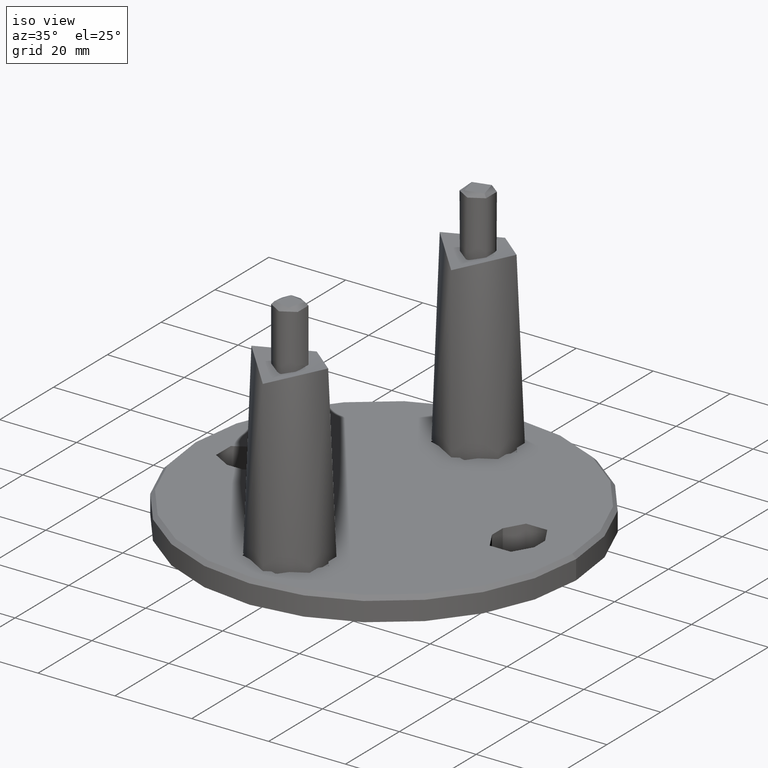
[diagram: clean part render]
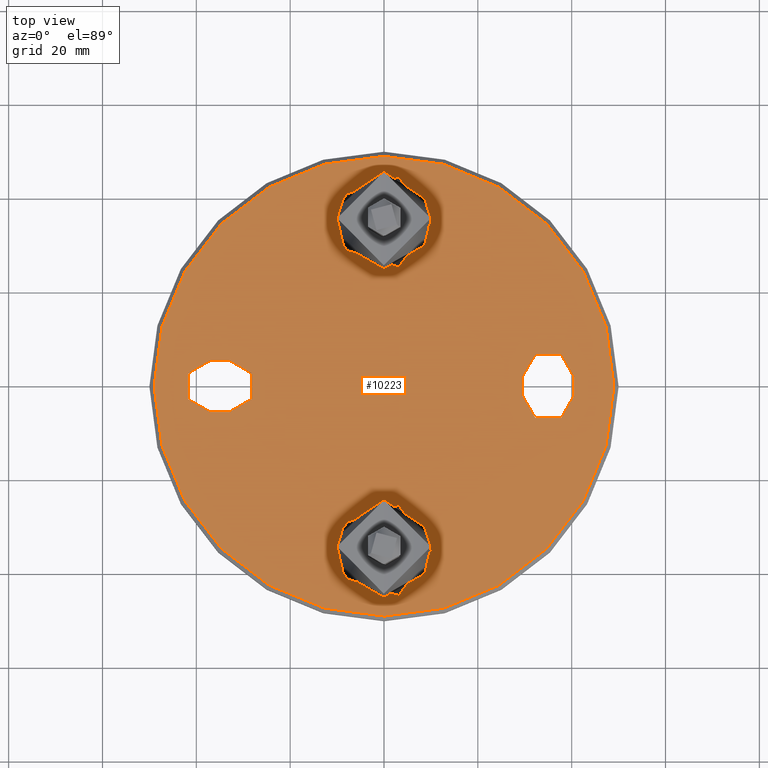
[diagram: tour spotlight — one face highlighted and labeled with its STEP entity id]
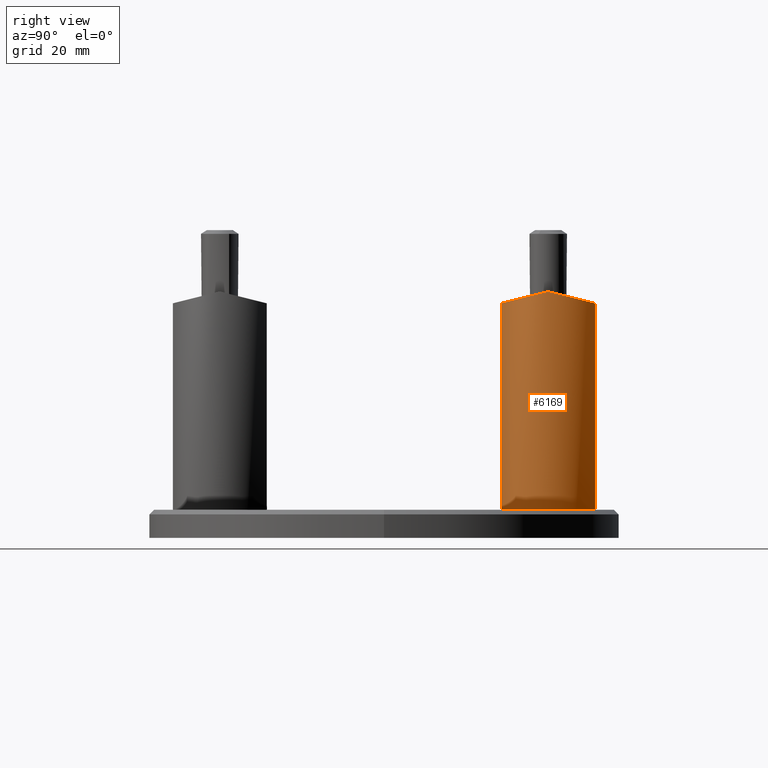
[diagram: tour spotlight — one face highlighted and labeled with its STEP entity id]
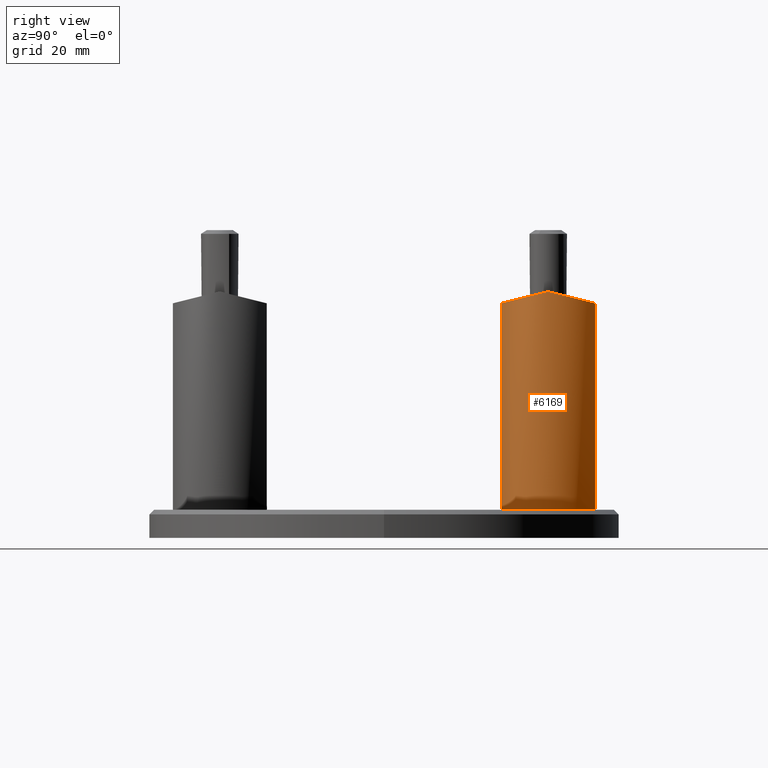
[diagram: tour spotlight — one face highlighted and labeled with its STEP entity id]
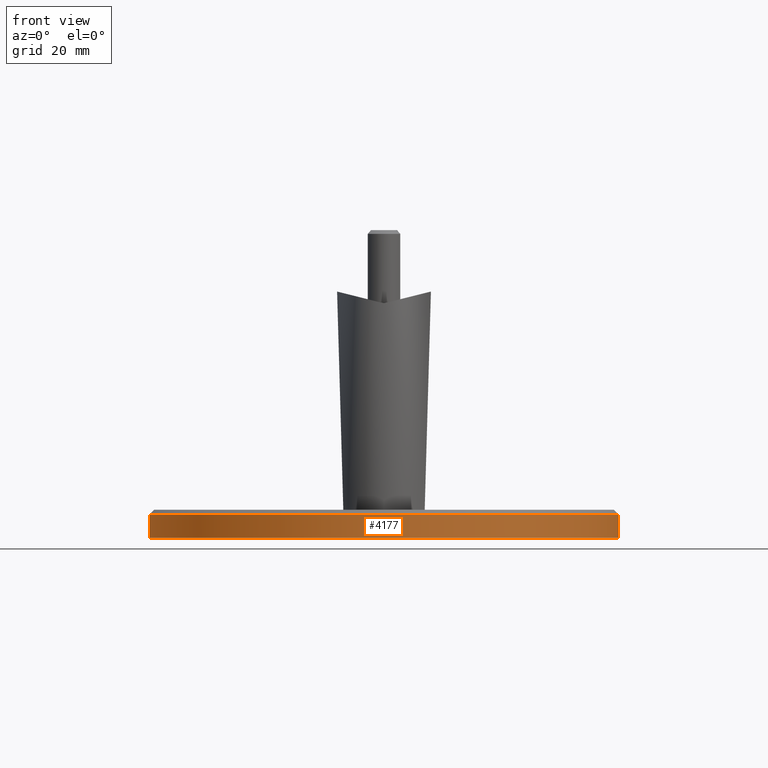
[diagram: tour spotlight — one face highlighted and labeled with its STEP entity id]
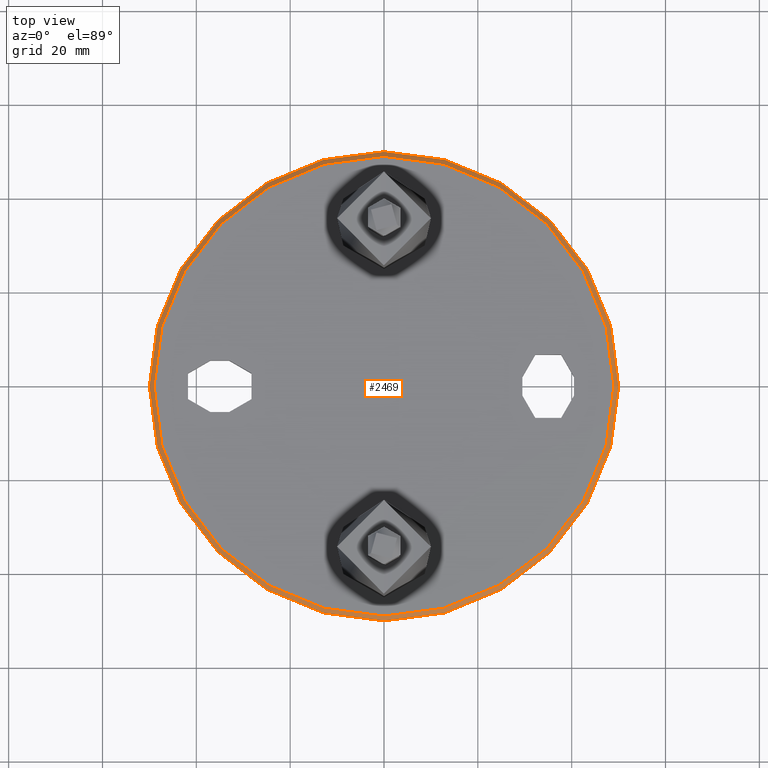
[diagram: tour spotlight — one face highlighted and labeled with its STEP entity id]
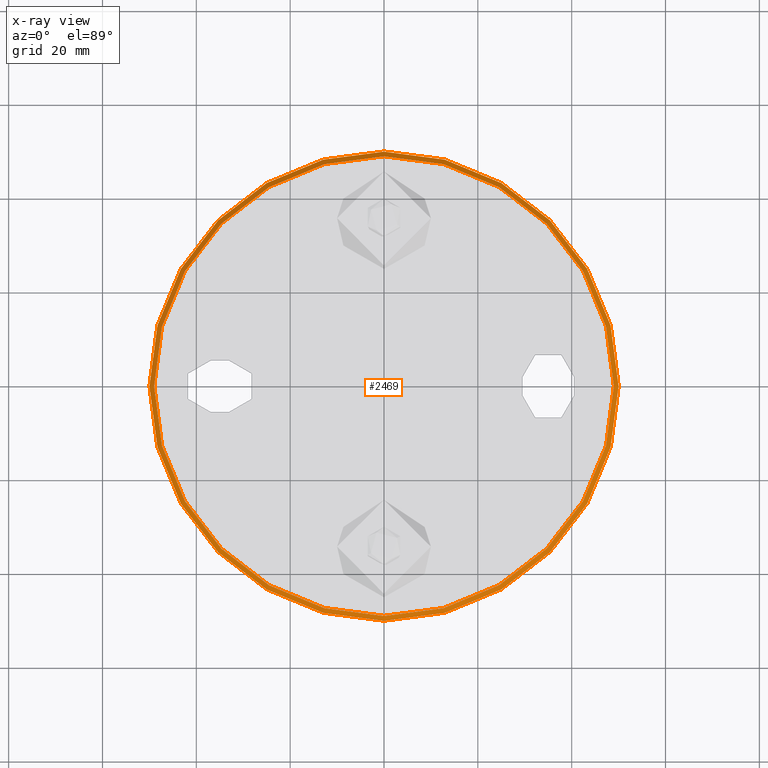
[diagram: x-ray of the same camera — body ghosted, this tour face saturated]
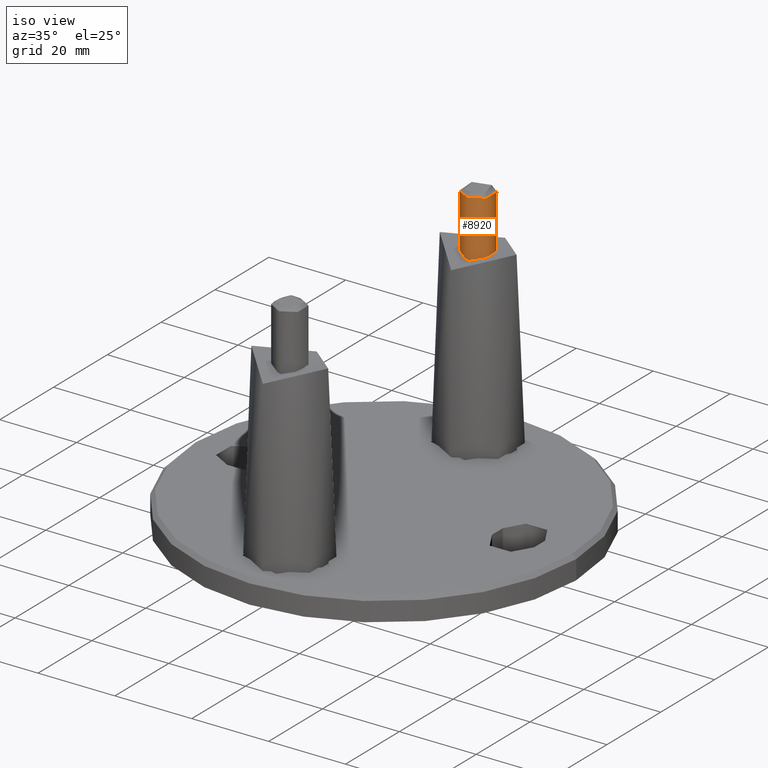
[diagram: tour spotlight — one face highlighted and labeled with its STEP entity id]
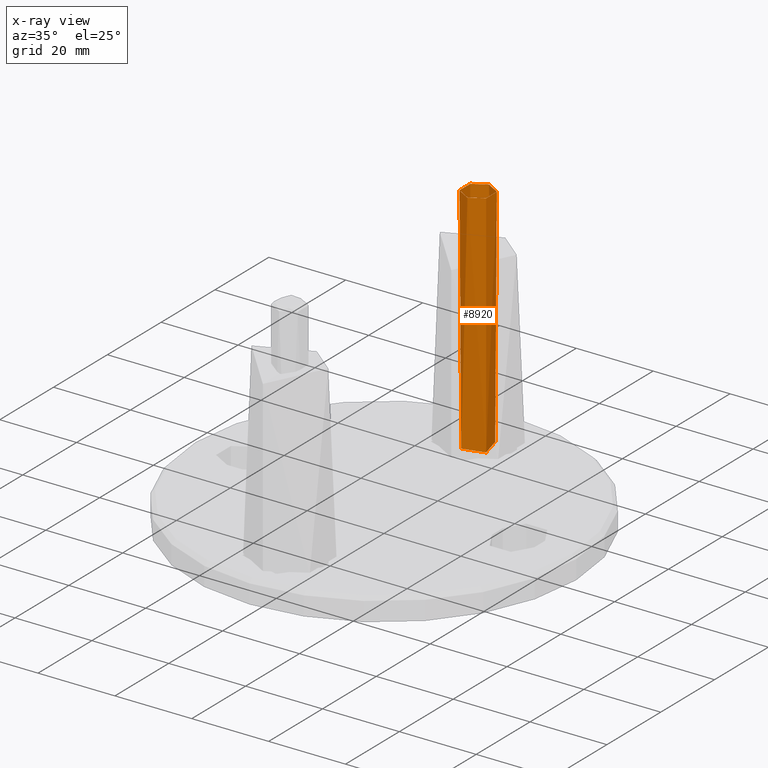
[diagram: x-ray of the same camera — body ghosted, this tour face saturated]
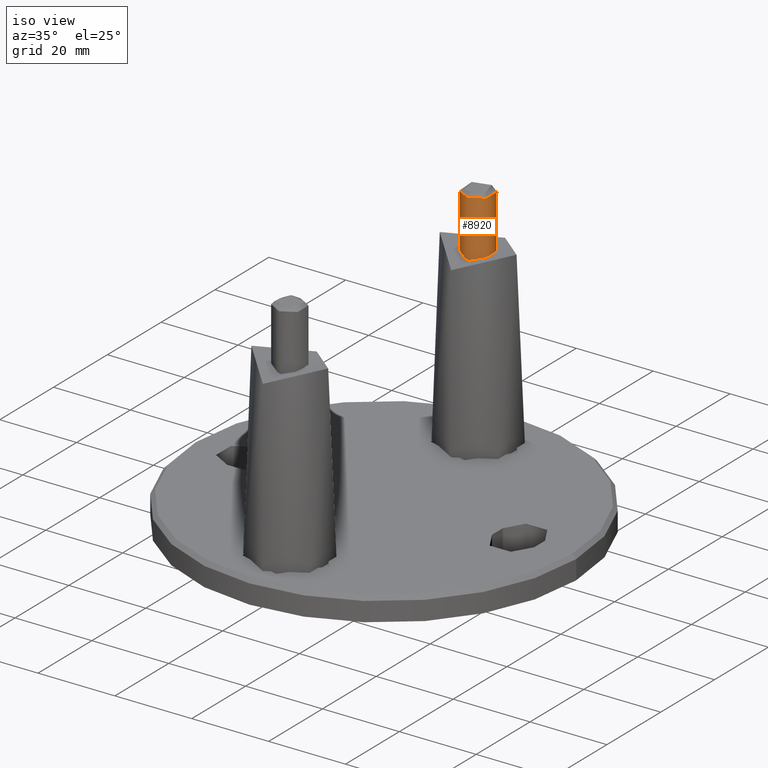
[diagram: tour spotlight — one face highlighted and labeled with its STEP entity id]
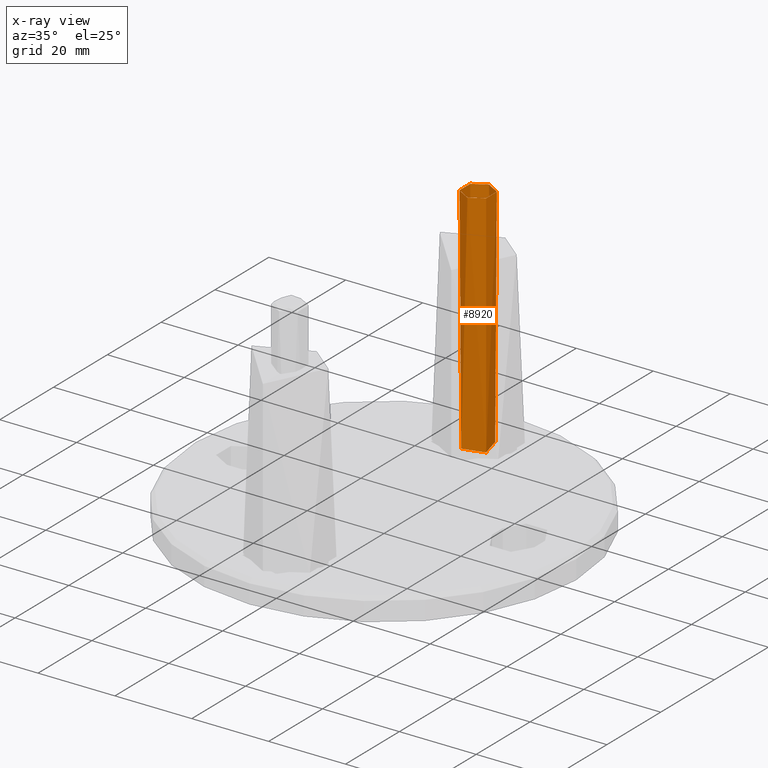
[diagram: x-ray of the same camera — body ghosted, this tour face saturated]
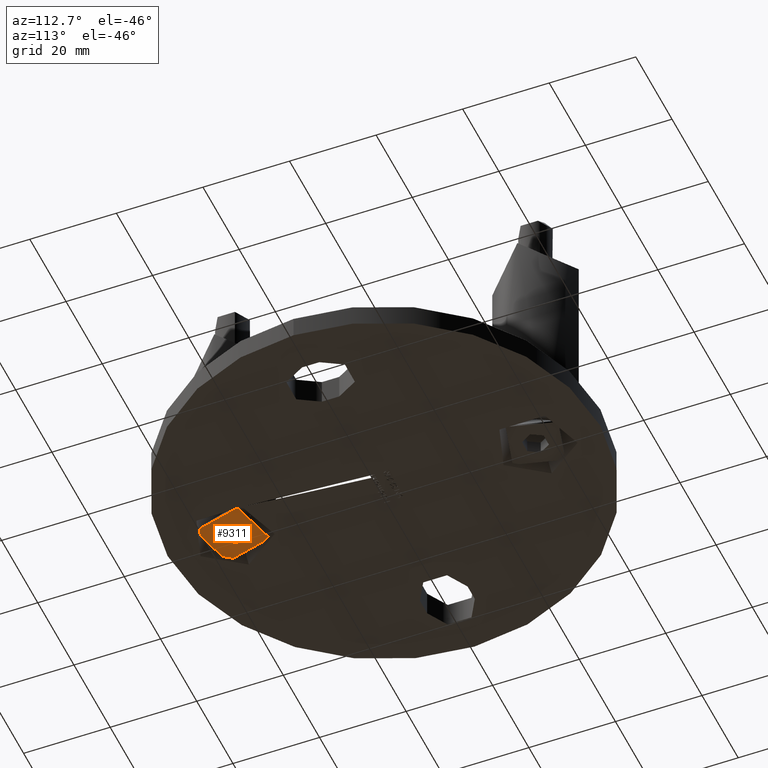
[diagram: tour spotlight — one face highlighted and labeled with its STEP entity id]
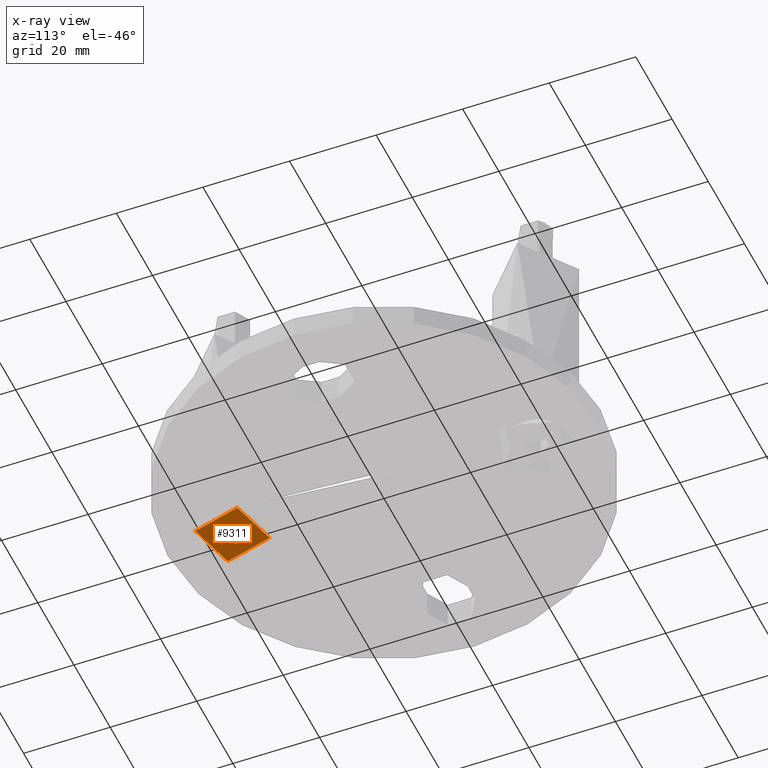
[diagram: x-ray of the same camera — body ghosted, this tour face saturated]
A machine part: a face-by-face anatomy tour. The part has 287 B-rep faces; the first image is the clean iso view, then the 8 largest visible faces are spotlighted one at a time (largest first), each with its STEP entity span.

Face 1 — top view, entity #10223. In plain terms, the highlighted planar face has unit normal (0, 0, 1).
Definition (entity closure, byte-faithful):
#28 = EDGE_LOOP ( 'NONE', ( #6400, #16029, #11396, #1804 ) ) ;
#101 = VERTEX_POINT ( 'NONE', #1952 ) ;
#156 = CARTESIAN_POINT ( 'NONE',  ( 29.50000000000000400, 2.000000000000001800, 6.000000000000000000 ) ) ;
#217 = DIRECTION ( 'NONE',  ( 1.000000000000000000, 0.0000000000000000000, 0.0000000000000000000 ) ) ;
#479 = CARTESIAN_POINT ( 'NONE',  ( -33.00000000000000000, 5.499999999999992000, 6.000000000000000000 ) ) ;
#555 = ORIENTED_EDGE ( 'NONE', *, *, #5833, .F. ) ;
#711 = DIRECTION ( 'NONE',  ( 0.0000000000000000000, 0.0000000000000000000, 1.000000000000000000 ) ) ;
#734 = AXIS2_PLACEMENT_3D ( 'NONE', #10836, #711, #15898 ) ;
#978 = CARTESIAN_POINT ( 'NONE',  ( -36.99999999999999300, -5.500000000000005300, 6.000000000000000000 ) ) ;
#1176 = AXIS2_PLACEMENT_3D ( 'NONE', #6819, #14404, #1820 ) ;
#1276 = CARTESIAN_POINT ( 'NONE',  ( 35.00000000000000000, -2.000000000000000900, 6.000000000000000000 ) ) ;
#1472 = CIRCLE ( 'NONE', #1931, 10.10000000000000000 ) ;
#1517 = CARTESIAN_POINT ( 'NONE',  ( -33.00000000000000700, -5.500000000000004400, 6.000000000000000000 ) ) ;
#1632 = VECTOR ( 'NONE', #3400, 1000.000000000000000 ) ;
#1804 = ORIENTED_EDGE ( 'NONE', *, *, #10577, .F. ) ;
#1818 = EDGE_LOOP ( 'NONE', ( #14609 ) ) ;
#1820 = DIRECTION ( 'NONE',  ( 1.000000000000000000, 0.0000000000000000000, -0.0000000000000000000 ) ) ;
#1839 = VERTEX_POINT ( 'NONE', #12055 ) ;
#1931 = AXIS2_PLACEMENT_3D ( 'NONE', #10504, #2830, #217 ) ;
#1952 = CARTESIAN_POINT ( 'NONE',  ( -36.99999999999999300, -5.500000000000005300, 6.000000000000000000 ) ) ;
#2120 = CARTESIAN_POINT ( 'NONE',  ( 0.0000000000000000000, 0.0000000000000000000, 6.000000000000000000 ) ) ;
#2144 = DIRECTION ( 'NONE',  ( 0.0000000000000000000, 0.0000000000000000000, 1.000000000000000000 ) ) ;
#2195 = CARTESIAN_POINT ( 'NONE',  ( 40.50000000000000700, 2.000000000000001800, 6.000000000000000000 ) ) ;
#2542 = ORIENTED_EDGE ( 'NONE', *, *, #9718, .F. ) ;
#2606 = CIRCLE ( 'NONE', #16094, 5.500000000000005300 ) ;
#2830 = DIRECTION ( 'NONE',  ( 0.0000000000000000000, 0.0000000000000000000, 1.000000000000000000 ) ) ;
#2892 = EDGE_CURVE ( 'NONE', #15754, #101, #9987, .T. ) ;
#2982 = VERTEX_POINT ( 'NONE', #2195 ) ;
#3400 = DIRECTION ( 'NONE',  ( 0.0000000000000000000, 1.000000000000000000, 0.0000000000000000000 ) ) ;
#3443 = DIRECTION ( 'NONE',  ( 1.000000000000000000, 0.0000000000000000000, 0.0000000000000000000 ) ) ;
#3457 = VECTOR ( 'NONE', #10136, 1000.000000000000000 ) ;
#3498 = EDGE_CURVE ( 'NONE', #1839, #1839, #1472, .T. ) ;
#4099 = PLANE ( 'NONE',  #1176 ) ;
#4201 = VERTEX_POINT ( 'NONE', #1517 ) ;
#4745 = CARTESIAN_POINT ( 'NONE',  ( -37.00000000000000000, -6.938893903907228400E-015, 6.000000000000000000 ) ) ;
#4818 = CARTESIAN_POINT ( 'NONE',  ( 29.50000000000000400, -2.000000000000003600, 6.000000000000000000 ) ) ;
#4863 = FACE_BOUND ( 'NONE', #13690, .T. ) ;
#5200 = LINE ( 'NONE', #7179, #1632 ) ;
#5551 = CIRCLE ( 'NONE', #10798, 5.499999999999998200 ) ;
#5833 = EDGE_CURVE ( 'NONE', #4201, #12917, #5551, .T. ) ;
#5964 = EDGE_LOOP ( 'NONE', ( #14165 ) ) ;
#5991 = CARTESIAN_POINT ( 'NONE',  ( -36.99999999999999300, 5.499999999999991100, 6.000000000000000000 ) ) ;
#5992 = DIRECTION ( 'NONE',  ( 0.0000000000000000000, 0.0000000000000000000, 1.000000000000000000 ) ) ;
#6098 = DIRECTION ( 'NONE',  ( -0.0000000000000000000, -1.000000000000000000, -0.0000000000000000000 ) ) ;
#6287 = DIRECTION ( 'NONE',  ( 0.0000000000000000000, 0.0000000000000000000, 1.000000000000000000 ) ) ;
#6349 = EDGE_CURVE ( 'NONE', #15076, #15076, #9314, .T. ) ;
#6400 = ORIENTED_EDGE ( 'NONE', *, *, #15120, .F. ) ;
#6756 = EDGE_LOOP ( 'NONE', ( #11336 ) ) ;
#6757 = DIRECTION ( 'NONE',  ( 0.0000000000000000000, 0.0000000000000000000, 1.000000000000000000 ) ) ;
#6819 = CARTESIAN_POINT ( 'NONE',  ( 0.0000000000000000000, 0.0000000000000000000, 6.000000000000000000 ) ) ;
#6970 = DIRECTION ( 'NONE',  ( 1.000000000000000000, 0.0000000000000000000, 0.0000000000000000000 ) ) ;
#6972 = VERTEX_POINT ( 'NONE', #12622 ) ;
#7179 = CARTESIAN_POINT ( 'NONE',  ( 40.50000000000000700, -2.000000000000000000, 6.000000000000000000 ) ) ;
#7518 = DIRECTION ( 'NONE',  ( 0.0000000000000000000, 0.0000000000000000000, 1.000000000000000000 ) ) ;
#7535 = CARTESIAN_POINT ( 'NONE',  ( -36.99999999999999300, 5.499999999999991100, 6.000000000000000000 ) ) ;
#7670 = DIRECTION ( 'NONE',  ( 1.000000000000000000, 0.0000000000000000000, 0.0000000000000000000 ) ) ;
#8461 = CIRCLE ( 'NONE', #734, 10.10000000000000000 ) ;
#8559 = EDGE_CURVE ( 'NONE', #10526, #10526, #8461, .T. ) ;
#8900 = AXIS2_PLACEMENT_3D ( 'NONE', #4745, #2144, #10972 ) ;
#9140 = AXIS2_PLACEMENT_3D ( 'NONE', #15239, #7518, #12633 ) ;
#9200 = CIRCLE ( 'NONE', #9140, 5.500000000000005300 ) ;
#9314 = CIRCLE ( 'NONE', #10465, 49.00000000000002100 ) ;
#9718 = EDGE_CURVE ( 'NONE', #101, #4201, #14936, .T. ) ;
#9987 = CIRCLE ( 'NONE', #8900, 5.499999999999998200 ) ;
#10136 = DIRECTION ( 'NONE',  ( -1.000000000000000000, -2.168404344971014500E-016, -0.0000000000000000000 ) ) ;
#10145 = ORIENTED_EDGE ( 'NONE', *, *, #2892, .F. ) ;
#10223 = ADVANCED_FACE ( 'NONE', ( #12368, #13959, #11972, #16086, #4863 ), #4099, .T. ) ;
#10394 = LINE ( 'NONE', #4818, #15353 ) ;
#10465 = AXIS2_PLACEMENT_3D ( 'NONE', #2120, #5992, #3443 ) ;
#10504 = CARTESIAN_POINT ( 'NONE',  ( 0.0000000000000000000, -35.00000000000000000, 6.000000000000000000 ) ) ;
#10526 = VERTEX_POINT ( 'NONE', #13287 ) ;
#10577 = EDGE_CURVE ( 'NONE', #2982, #11689, #9200, .T. ) ;
#10798 = AXIS2_PLACEMENT_3D ( 'NONE', #15618, #6757, #6970 ) ;
#10836 = CARTESIAN_POINT ( 'NONE',  ( 0.0000000000000000000, 35.00000000000000000, 6.000000000000000000 ) ) ;
#10972 = DIRECTION ( 'NONE',  ( 1.000000000000000000, 0.0000000000000000000, 0.0000000000000000000 ) ) ;
#11336 = ORIENTED_EDGE ( 'NONE', *, *, #8559, .F. ) ;
#11396 = ORIENTED_EDGE ( 'NONE', *, *, #14593, .F. ) ;
#11412 = EDGE_CURVE ( 'NONE', #12917, #15754, #15504, .T. ) ;
#11689 = VERTEX_POINT ( 'NONE', #156 ) ;
#11972 = FACE_BOUND ( 'NONE', #6756, .T. ) ;
#12055 = CARTESIAN_POINT ( 'NONE',  ( 10.10000000000000000, -35.00000000000000000, 6.000000000000000000 ) ) ;
#12368 = FACE_OUTER_BOUND ( 'NONE', #5964, .T. ) ;
#12622 = CARTESIAN_POINT ( 'NONE',  ( 40.50000000000000700, -2.000000000000000000, 6.000000000000000000 ) ) ;
#12633 = DIRECTION ( 'NONE',  ( 1.000000000000000000, 0.0000000000000000000, 0.0000000000000000000 ) ) ;
#12917 = VERTEX_POINT ( 'NONE', #479 ) ;
#13287 = CARTESIAN_POINT ( 'NONE',  ( 10.10000000000000000, 35.00000000000000000, 6.000000000000000000 ) ) ;
#13685 = CARTESIAN_POINT ( 'NONE',  ( 29.50000000000000400, -2.000000000000003600, 6.000000000000000000 ) ) ;
#13690 = EDGE_LOOP ( 'NONE', ( #2542, #10145, #15204, #555 ) ) ;
#13959 = FACE_BOUND ( 'NONE', #1818, .T. ) ;
#14165 = ORIENTED_EDGE ( 'NONE', *, *, #6349, .T. ) ;
#14215 = EDGE_CURVE ( 'NONE', #15212, #6972, #2606, .T. ) ;
#14404 = DIRECTION ( 'NONE',  ( 0.0000000000000000000, 0.0000000000000000000, 1.000000000000000000 ) ) ;
#14541 = VECTOR ( 'NONE', #15151, 1000.000000000000000 ) ;
#14593 = EDGE_CURVE ( 'NONE', #11689, #15212, #10394, .T. ) ;
#14609 = ORIENTED_EDGE ( 'NONE', *, *, #3498, .F. ) ;
#14636 = CARTESIAN_POINT ( 'NONE',  ( 49.00000000000002100, 0.0000000000000000000, 6.000000000000000000 ) ) ;
#14936 = LINE ( 'NONE', #978, #14541 ) ;
#15076 = VERTEX_POINT ( 'NONE', #14636 ) ;
#15120 = EDGE_CURVE ( 'NONE', #6972, #2982, #5200, .T. ) ;
#15151 = DIRECTION ( 'NONE',  ( 1.000000000000000000, 2.168404344971014500E-016, 0.0000000000000000000 ) ) ;
#15204 = ORIENTED_EDGE ( 'NONE', *, *, #11412, .F. ) ;
#15212 = VERTEX_POINT ( 'NONE', #13685 ) ;
#15239 = CARTESIAN_POINT ( 'NONE',  ( 35.00000000000000000, 2.000000000000000900, 6.000000000000000000 ) ) ;
#15353 = VECTOR ( 'NONE', #6098, 1000.000000000000000 ) ;
#15504 = LINE ( 'NONE', #7535, #3457 ) ;
#15618 = CARTESIAN_POINT ( 'NONE',  ( -32.99999999999999300, -6.071532165918824800E-015, 6.000000000000000000 ) ) ;
#15754 = VERTEX_POINT ( 'NONE', #5991 ) ;
#15898 = DIRECTION ( 'NONE',  ( 1.000000000000000000, 0.0000000000000000000, 0.0000000000000000000 ) ) ;
#16029 = ORIENTED_EDGE ( 'NONE', *, *, #14215, .F. ) ;
#16086 = FACE_BOUND ( 'NONE', #28, .T. ) ;
#16094 = AXIS2_PLACEMENT_3D ( 'NONE', #1276, #6287, #7670 ) ;

Face 2 — right view, entity #6169. In plain terms, the highlighted cylindrical surface (bore or boss wall) has radius 10 mm, axis along (-0, 0, -1).
Definition (entity closure, byte-faithful):
#18 = DIRECTION ( 'NONE',  ( -0.0000000000000000000, -1.000000000000000000, -0.0000000000000000000 ) ) ;
#78 = DIRECTION ( 'NONE',  ( 0.0000000000000000000, 0.0000000000000000000, -1.000000000000000000 ) ) ;
#148 = DIRECTION ( 'NONE',  ( 0.0000000000000000000, 0.0000000000000000000, 1.000000000000000000 ) ) ;
#256 = DIRECTION ( 'NONE',  ( 0.0000000000000000000, 1.000000000000000000, 0.0000000000000000000 ) ) ;
#516 = CARTESIAN_POINT ( 'NONE',  ( 9.982414581929930400, 46.99725035317056400, 0.6795817556389306400 ) ) ;
#568 = CARTESIAN_POINT ( 'NONE',  ( 8.964253897605766900, 46.48773758420086500, -4.443967780737021500 ) ) ;
#625 = CARTESIAN_POINT ( 'NONE',  ( 0.6710340642420658000, 44.50000000000002100, -10.00000000000000400 ) ) ;
#911 = CARTESIAN_POINT ( 'NONE',  ( -0.6710340642420703500, 44.50000000000000000, -9.999999999999998200 ) ) ;
#964 = CARTESIAN_POINT ( 'NONE',  ( -9.870155520532206200, 46.93766143655276600, 1.639681426772311200 ) ) ;
#966 = CARTESIAN_POINT ( 'NONE',  ( 4.469110848030649800, 44.97431208322698400, -8.951756303271849900 ) ) ;
#995 = CARTESIAN_POINT ( 'NONE',  ( 6.097048751048081500, 45.39396812799017800, 7.932912277434814600 ) ) ;
#1019 = CARTESIAN_POINT ( 'NONE',  ( -8.670077701673784900, 46.34999724163485300, 5.024729755145505900 ) ) ;
#1085 = CARTESIAN_POINT ( 'NONE',  ( -9.346966378711949000, 46.67124106123582500, -3.569254565059489300 ) ) ;
#1490 = CARTESIAN_POINT ( 'NONE',  ( 0.0000000000000000000, 0.0000000000000000000, 0.0000000000000000000 ) ) ;
#1637 = VERTEX_POINT ( 'NONE', #9508 ) ;
#1643 = CARTESIAN_POINT ( 'NONE',  ( 5.300468791646417300, 45.17142248634212400, 8.485845364758796800 ) ) ;
#1807 = CARTESIAN_POINT ( 'NONE',  ( 8.954484395985863500, 46.48317448152611300, 4.463650138016776100 ) ) ;
#1971 = CARTESIAN_POINT ( 'NONE',  ( 9.483190860956497700, 46.73721560809785600, -3.239967857514311600 ) ) ;
#2189 = CARTESIAN_POINT ( 'NONE',  ( -9.932088329190991200, 46.96993190506123000, -1.337674638786005900 ) ) ;
#2228 = CARTESIAN_POINT ( 'NONE',  ( 3.238085567351746400, 44.73962003743160700, 9.484155180939842100 ) ) ;
#2254 = CARTESIAN_POINT ( 'NONE',  ( -4.469624339306767200, 44.97444407463622400, 8.951438951896889800 ) ) ;
#2258 = CARTESIAN_POINT ( 'NONE',  ( 1.301042606982605300E-015, 44.50000000000001400, -10.00000000000000200 ) ) ;
#2277 = CARTESIAN_POINT ( 'NONE',  ( 5.022853073952959800, 45.10151269576292100, 8.653159878084377300 ) ) ;
#2311 = CARTESIAN_POINT ( 'NONE',  ( -2.643370765987185200, 44.66305753939220600, 9.649892476246456900 ) ) ;
#2362 = CARTESIAN_POINT ( 'NONE',  ( -9.740840076068991500, 46.87020039986192200, 2.285729597577682800 ) ) ;
#2980 = FACE_OUTER_BOUND ( 'NONE', #5569, .T. ) ;
#3081 = CARTESIAN_POINT ( 'NONE',  ( 4.170323546639157700, 44.91195116759663400, -9.094828785750630500 ) ) ;
#3134 = CARTESIAN_POINT ( 'NONE',  ( 3.263228641391706700, 44.74362555683444500, -9.475303443008348500 ) ) ;
#3186 = CARTESIAN_POINT ( 'NONE',  ( 7.538899342453330400, 45.87975883678201700, -6.602055655766884400 ) ) ;
#3254 = CARTESIAN_POINT ( 'NONE',  ( -4.467945790593070400, 44.96707144381373700, -8.970271105152134400 ) ) ;
#3465 = CARTESIAN_POINT ( 'NONE',  ( 1.305867936509205900, 44.53763576834389000, 9.920004263371618300 ) ) ;
#3470 = CARTESIAN_POINT ( 'NONE',  ( 2.637974639928488700, 44.65473981049649400, -9.668325632801604300 ) ) ;
#3528 = CARTESIAN_POINT ( 'NONE',  ( -6.627858110228785900, 45.55692945934244200, 7.515623325812176100 ) ) ;
#3579 = CARTESIAN_POINT ( 'NONE',  ( -8.977166742959017400, 46.49246610309258900, 4.454461449407234300 ) ) ;
#3753 = CARTESIAN_POINT ( 'NONE',  ( 0.0000000000000000000, 59.50000000000000000, 0.0000000000000000000 ) ) ;
#4304 = CARTESIAN_POINT ( 'NONE',  ( 9.105824283226917600, 46.55467447853733600, -4.146207819050889800 ) ) ;
#4352 = CARTESIAN_POINT ( 'NONE',  ( 8.643691189815093900, 46.34139012169166000, 5.039202909953545800 ) ) ;
#4521 = CARTESIAN_POINT ( 'NONE',  ( -5.848381953352692600, 45.32072929997159600, -8.118014525222385200 ) ) ;
#4594 = CARTESIAN_POINT ( 'NONE',  ( 4.448730584124480600, 44.96993660368571700, 8.961865044067748100 ) ) ;
#4740 = CARTESIAN_POINT ( 'NONE',  ( -1.340954340740363700, 44.53227347118250600, 9.932095520693579300 ) ) ;
#4772 = CARTESIAN_POINT ( 'NONE',  ( 4.150656756408730000, 44.90798879209465600, 9.103880925181767800 ) ) ;
#4794 = CARTESIAN_POINT ( 'NONE',  ( -9.735572841129643600, 46.86747285120679200, -2.308150657904440200 ) ) ;
#4860 = CARTESIAN_POINT ( 'NONE',  ( -3.270760802825266400, 44.75143248648965500, 9.455683876922680800 ) ) ;
#5564 = CARTESIAN_POINT ( 'NONE',  ( 7.948877540109214700, 46.04273951036299900, -6.101819572144875400 ) ) ;
#5569 = EDGE_LOOP ( 'NONE', ( #5859 ) ) ;
#5674 = CARTESIAN_POINT ( 'NONE',  ( 9.472294849355286300, 46.73177138179068600, 3.270813786289182200 ) ) ;
#5726 = CARTESIAN_POINT ( 'NONE',  ( 9.864538830927537900, 46.93470091502101800, 1.673526740888290300 ) ) ;
#5786 = CARTESIAN_POINT ( 'NONE',  ( -6.110589595650704800, 45.39805380392230900, -7.922442904969484400 ) ) ;
#5859 = ORIENTED_EDGE ( 'NONE', *, *, #15122, .F. ) ;
#6011 = CARTESIAN_POINT ( 'NONE',  ( -9.653127112434358300, 46.82491060101073500, -2.631725452114392900 ) ) ;
#6074 = CARTESIAN_POINT ( 'NONE',  ( -8.664137667471560900, 46.34728847207557600, -5.035304216957190900 ) ) ;
#6136 = CARTESIAN_POINT ( 'NONE',  ( -9.468641170223662600, 46.73170042201368800, 3.233088247809586600 ) ) ;
#6169 = ADVANCED_FACE ( 'NONE', ( #8153, #2980 ), #14648, .T. ) ;
#6283 = AXIS2_PLACEMENT_3D ( 'NONE', #3753, #18, #78 ) ;
#6673 = B_SPLINE_CURVE_WITH_KNOTS ( 'NONE', 3,
 ( #13466, #911, #12241, #8300, #13525, #10812, #8350, #3254, #12089, #4521, #5786, #13375, #14616, #7078, #15872, #12302, #8548, #6074, #7296, #1085, #9913, #6011, #4794, #2189, #11076, #7416, #14884, #16084, #964, #2362, #11198, #6136, #16192, #3579, #1019, #14832, #13627, #9853, #7356, #3528, #9793, #8672, #12421, #2254, #16138, #14944, #4860, #2311, #12366, #4740, #8613, #11020, #13577, #3465, #11138, #13681, #2228, #4772, #4594, #2277, #1643, #11538, #995, #10887, #9670, #8244, #11863, #13314, #4352, #1807, #14391, #5674, #10693, #5726, #10807, #516, #9485, #10748, #9538, #9382, #10637, #1971, #4304, #568, #15770, #6863, #5564, #3186, #14502, #15662, #8294, #11918, #966, #3081, #3134, #3470, #14561, #625, #2258 ),
 .UNSPECIFIED., .T., .F.,
 ( 4, 2, 2, 2, 2, 2, 2, 2, 2, 2, 2, 2, 2, 2, 2, 2, 2, 2, 2, 2, 2, 2, 2, 2, 2, 2, 2, 2, 2, 2, 2, 2, 2, 2, 2, 2, 2, 2, 1, 2, 2, 2, 2, 2, 2, 2, 2, 2, 2, 4 ),
 ( 0.0000000000000000000, 0.001982588497940418900, 0.002973882746910628600, 0.003965176995880837800, 0.005947765493821255400, 0.006939059742791460300, 0.007930353991761665200, 0.008921648240731869200, 0.009912942489702075000, 0.01189553098764248300, 0.01288682523661268400, 0.01387811948558288800, 0.01586070798352329600, 0.01685200223249350100, 0.01784329648146370700, 0.01883459073043391000, 0.01982588497940411200, 0.02180847347734452000, 0.02279976772631472600, 0.02379106197528492800, 0.02577365047322533300, 0.02676494472219554200, 0.02775623897116574800, 0.02874753322013595300, 0.02973882746910615600, 0.03172141596704657100, 0.03271271021601678000, 0.03370400446498698900, 0.03568659296292740100, 0.03667788721189760300, 0.03766918146086780500, 0.03866047570983800800, 0.03965176995880821000, 0.04163435845674862100, 0.04262565270571882400, 0.04361694695468902600, 0.04559953545262944400, 0.04659082970159964000, 0.04758212395056984900, 0.04857341819954005800, 0.04956471244851026100, 0.05154730094645067200, 0.05253859519542088100, 0.05352988944439109100, 0.05551247794233150200, 0.05749506644027191400, 0.05848636068924211600, 0.05947765493821231100, 0.06146024343615272300, 0.06344283193409312700 ),
 .UNSPECIFIED. ) ;
#6863 = CARTESIAN_POINT ( 'NONE',  ( 8.487868160873848200, 46.27233338483753800, -5.297198140837264400 ) ) ;
#7016 = AXIS2_PLACEMENT_3D ( 'NONE', #1490, #256, #148 ) ;
#7078 = CARTESIAN_POINT ( 'NONE',  ( -7.300951022269778400, 45.79537651172479000, -6.840990230692230300 ) ) ;
#7296 = CARTESIAN_POINT ( 'NONE',  ( -8.970256519379059800, 46.48926636190037000, -4.467206343612938100 ) ) ;
#7356 = CARTESIAN_POINT ( 'NONE',  ( -7.308550278609130800, 45.79816487585001300, 6.832888635214744400 ) ) ;
#7416 = CARTESIAN_POINT ( 'NONE',  ( -10.00062361897687800, 47.00701929166193300, 0.3122771294461828600 ) ) ;
#7641 = EDGE_LOOP ( 'NONE', ( #12601 ) ) ;
#8049 = EDGE_CURVE ( 'NONE', #15661, #15661, #12997, .T. ) ;
#8153 = FACE_OUTER_BOUND ( 'NONE', #7641, .T. ) ;
#8244 = CARTESIAN_POINT ( 'NONE',  ( 7.525093448978551300, 45.87456955929460600, 6.617394336226085200 ) ) ;
#8294 = CARTESIAN_POINT ( 'NONE',  ( 5.321618406944567800, 45.17690687289609000, -8.472575861996764600 ) ) ;
#8300 = CARTESIAN_POINT ( 'NONE',  ( -2.297693411830911800, 44.62238692359608900, -9.738022964414092500 ) ) ;
#8350 = CARTESIAN_POINT ( 'NONE',  ( -3.562531639691297600, 44.79922047286038400, -9.349622673568161300 ) ) ;
#8548 = CARTESIAN_POINT ( 'NONE',  ( -8.121236675598366300, 46.11622620356573100, -5.843877768953392500 ) ) ;
#8613 = CARTESIAN_POINT ( 'NONE',  ( -0.6834819277264022600, 44.50069933452134300, 9.998517408036187600 ) ) ;
#8672 = CARTESIAN_POINT ( 'NONE',  ( -5.322760873410800300, 45.17717030646246500, 8.471968775020458900 ) ) ;
#9382 = CARTESIAN_POINT ( 'NONE',  ( 9.871121741946090800, 46.93816734879776200, -1.634491064771979900 ) ) ;
#9485 = CARTESIAN_POINT ( 'NONE',  ( 10.01631626969540700, 47.01544189799530200, 0.01857522702975627000 ) ) ;
#9508 = CARTESIAN_POINT ( 'NONE',  ( 0.0000000000000000000, 44.50000000000000000, -10.00000000000000000 ) ) ;
#9538 = CARTESIAN_POINT ( 'NONE',  ( 9.920380355499624200, 46.96427509218953100, -1.302347838749822200 ) ) ;
#9670 = CARTESIAN_POINT ( 'NONE',  ( 6.839951502429692600, 45.63227107173843700, 7.302006453616297900 ) ) ;
#9793 = CARTESIAN_POINT ( 'NONE',  ( -6.132600853380590200, 45.39865781395347000, 7.925614155057904700 ) ) ;
#9853 = CARTESIAN_POINT ( 'NONE',  ( -7.524993111475469100, 45.87921911988964000, 6.593921742419152700 ) ) ;
#9913 = CARTESIAN_POINT ( 'NONE',  ( -9.458677917299706200, 46.72672208274386200, -3.262246765790242500 ) ) ;
#10637 = CARTESIAN_POINT ( 'NONE',  ( 9.675507312051708600, 46.83611403346090200, -2.612849057063030100 ) ) ;
#10693 = CARTESIAN_POINT ( 'NONE',  ( 9.665881770994378300, 46.83116235769887200, 2.647640834127706500 ) ) ;
#10748 = CARTESIAN_POINT ( 'NONE',  ( 9.984883444086820600, 46.99857126241598600, -0.6419960271529263600 ) ) ;
#10807 = CARTESIAN_POINT ( 'NONE',  ( 9.915274281338115600, 46.96156940500775800, 1.340808776060016700 ) ) ;
#10812 = CARTESIAN_POINT ( 'NONE',  ( -3.250913155897737500, 44.74829779331341200, -9.462627308533422300 ) ) ;
#10887 = CARTESIAN_POINT ( 'NONE',  ( 6.598063982832348600, 45.55119146107674800, 7.521346445456655000 ) ) ;
#11020 = CARTESIAN_POINT ( 'NONE',  ( 0.3086700263047489300, 44.49966752907906200, 10.00070483970724100 ) ) ;
#11076 = CARTESIAN_POINT ( 'NONE',  ( -9.998696486463018100, 47.00598837342454300, -0.6826621914575061700 ) ) ;
#11138 = CARTESIAN_POINT ( 'NONE',  ( 1.636967487498487900, 44.56078460780309300, 9.870649787743909400 ) ) ;
#11198 = CARTESIAN_POINT ( 'NONE',  ( -9.660501931672069300, 46.82869223082698800, 2.604367035718911700 ) ) ;
#11538 = CARTESIAN_POINT ( 'NONE',  ( 5.837567185155434000, 45.31764798890291200, 8.125721526400743900 ) ) ;
#11863 = CARTESIAN_POINT ( 'NONE',  ( 7.933274043123658400, 46.03640577851175000, 6.122131788245915200 ) ) ;
#11918 = CARTESIAN_POINT ( 'NONE',  ( 5.044287161887472100, 45.10674240378966000, -8.640721018154085400 ) ) ;
#12089 = CARTESIAN_POINT ( 'NONE',  ( -5.038782628365570600, 45.09991134549583300, -8.662193419693037900 ) ) ;
#12107 = CARTESIAN_POINT ( 'NONE',  ( 0.0000000000000000000, 0.0000000000000000000, 10.00000000000000000 ) ) ;
#12241 = CARTESIAN_POINT ( 'NONE',  ( -1.329035019492094800, 44.53176110370962700, -9.933157151574398800 ) ) ;
#12302 = CARTESIAN_POINT ( 'NONE',  ( -7.926479567013464200, 46.03634569979941900, -6.105312912600720000 ) ) ;
#12366 = CARTESIAN_POINT ( 'NONE',  ( -2.321123980530118500, 44.62489419474491800, 9.732602604701428500 ) ) ;
#12421 = CARTESIAN_POINT ( 'NONE',  ( -5.041889264817294600, 45.10617658638335600, 8.642057260015144800 ) ) ;
#12601 = ORIENTED_EDGE ( 'NONE', *, *, #8049, .T. ) ;
#12997 = CIRCLE ( 'NONE', #7016, 10.00000000000000000 ) ;
#13314 = CARTESIAN_POINT ( 'NONE',  ( 8.474600290213574600, 46.26653418433105700, 5.318409874210495000 ) ) ;
#13375 = CARTESIAN_POINT ( 'NONE',  ( -6.609289752536050800, 45.55488611295705000, -7.511437662391789300 ) ) ;
#13466 = CARTESIAN_POINT ( 'NONE',  ( 1.301042606982605300E-015, 44.50000000000001400, -10.00000000000000200 ) ) ;
#13525 = CARTESIAN_POINT ( 'NONE',  ( -2.617500944891943500, 44.65977779327523900, -9.657040992502890800 ) ) ;
#13577 = CARTESIAN_POINT ( 'NONE',  ( 0.6403841539655663600, 44.50705638481922900, 9.985073048719455000 ) ) ;
#13627 = CARTESIAN_POINT ( 'NONE',  ( -7.936704401603066100, 46.04045780627950500, 6.092130047403443900 ) ) ;
#13681 = CARTESIAN_POINT ( 'NONE',  ( 2.609920523246683600, 44.65118353271086000, 9.676046403981303000 ) ) ;
#14391 = CARTESIAN_POINT ( 'NONE',  ( 9.094906581114150500, 46.54948588321320100, 4.169930744656558600 ) ) ;
#14502 = CARTESIAN_POINT ( 'NONE',  ( 6.621219789586844800, 45.55461810831705800, -7.522073562221411400 ) ) ;
#14561 = CARTESIAN_POINT ( 'NONE',  ( 1.344662000693792600, 44.53271933505162400, -9.931128578700638700 ) ) ;
#14616 = CARTESIAN_POINT ( 'NONE',  ( -6.847198858430585000, 45.63476165522357800, -7.295128577284672600 ) ) ;
#14648 = CYLINDRICAL_SURFACE ( 'NONE', #6283, 10.00000000000000000 ) ;
#14832 = CARTESIAN_POINT ( 'NONE',  ( -8.130565604776343500, 46.12010938559979700, 5.830818301298223500 ) ) ;
#14884 = CARTESIAN_POINT ( 'NONE',  ( -9.984543149312616000, 46.99838857378518500, 0.6482319937424355600 ) ) ;
#14944 = CARTESIAN_POINT ( 'NONE',  ( -3.577317506686148000, 44.80177668974654600, 9.343902856696461300 ) ) ;
#15122 = EDGE_CURVE ( 'NONE', #1637, #1637, #6673, .T. ) ;
#15661 = VERTEX_POINT ( 'NONE', #12107 ) ;
#15662 = CARTESIAN_POINT ( 'NONE',  ( 6.124496373301692400, 45.39634416995156800, -7.931405991317072700 ) ) ;
#15770 = CARTESIAN_POINT ( 'NONE',  ( 8.655133622111812000, 46.34651098489842300, -5.019497939073055200 ) ) ;
#15872 = CARTESIAN_POINT ( 'NONE',  ( -7.516793179015194500, 45.87612048392171000, -6.603161696563376800 ) ) ;
#16084 = CARTESIAN_POINT ( 'NONE',  ( -9.919135567911885300, 46.96361503856736200, 1.312271390979043800 ) ) ;
#16138 = CARTESIAN_POINT ( 'NONE',  ( -4.176749845393708000, 44.91328071104373300, 9.091781006383024900 ) ) ;
#16192 = CARTESIAN_POINT ( 'NONE',  ( -9.356429260281085900, 46.67588499350652900, 3.544738196417629900 ) ) ;

Face 3 — right view, entity #6169. In plain terms, the highlighted cylindrical surface (bore or boss wall) has radius 10 mm, axis along (0, -0, -1).
Definition (entity closure, byte-faithful):
#18 = DIRECTION ( 'NONE',  ( -0.0000000000000000000, -1.000000000000000000, -0.0000000000000000000 ) ) ;
#78 = DIRECTION ( 'NONE',  ( 0.0000000000000000000, 0.0000000000000000000, -1.000000000000000000 ) ) ;
#148 = DIRECTION ( 'NONE',  ( 0.0000000000000000000, 0.0000000000000000000, 1.000000000000000000 ) ) ;
#256 = DIRECTION ( 'NONE',  ( 0.0000000000000000000, 1.000000000000000000, 0.0000000000000000000 ) ) ;
#516 = CARTESIAN_POINT ( 'NONE',  ( 9.982414581929930400, 46.99725035317056400, 0.6795817556389306400 ) ) ;
#568 = CARTESIAN_POINT ( 'NONE',  ( 8.964253897605766900, 46.48773758420086500, -4.443967780737021500 ) ) ;
#625 = CARTESIAN_POINT ( 'NONE',  ( 0.6710340642420658000, 44.50000000000002100, -10.00000000000000400 ) ) ;
#911 = CARTESIAN_POINT ( 'NONE',  ( -0.6710340642420703500, 44.50000000000000000, -9.999999999999998200 ) ) ;
#964 = CARTESIAN_POINT ( 'NONE',  ( -9.870155520532206200, 46.93766143655276600, 1.639681426772311200 ) ) ;
#966 = CARTESIAN_POINT ( 'NONE',  ( 4.469110848030649800, 44.97431208322698400, -8.951756303271849900 ) ) ;
#995 = CARTESIAN_POINT ( 'NONE',  ( 6.097048751048081500, 45.39396812799017800, 7.932912277434814600 ) ) ;
#1019 = CARTESIAN_POINT ( 'NONE',  ( -8.670077701673784900, 46.34999724163485300, 5.024729755145505900 ) ) ;
#1085 = CARTESIAN_POINT ( 'NONE',  ( -9.346966378711949000, 46.67124106123582500, -3.569254565059489300 ) ) ;
#1490 = CARTESIAN_POINT ( 'NONE',  ( 0.0000000000000000000, 0.0000000000000000000, 0.0000000000000000000 ) ) ;
#1637 = VERTEX_POINT ( 'NONE', #9508 ) ;
#1643 = CARTESIAN_POINT ( 'NONE',  ( 5.300468791646417300, 45.17142248634212400, 8.485845364758796800 ) ) ;
#1807 = CARTESIAN_POINT ( 'NONE',  ( 8.954484395985863500, 46.48317448152611300, 4.463650138016776100 ) ) ;
#1971 = CARTESIAN_POINT ( 'NONE',  ( 9.483190860956497700, 46.73721560809785600, -3.239967857514311600 ) ) ;
#2189 = CARTESIAN_POINT ( 'NONE',  ( -9.932088329190991200, 46.96993190506123000, -1.337674638786005900 ) ) ;
#2228 = CARTESIAN_POINT ( 'NONE',  ( 3.238085567351746400, 44.73962003743160700, 9.484155180939842100 ) ) ;
#2254 = CARTESIAN_POINT ( 'NONE',  ( -4.469624339306767200, 44.97444407463622400, 8.951438951896889800 ) ) ;
#2258 = CARTESIAN_POINT ( 'NONE',  ( 1.301042606982605300E-015, 44.50000000000001400, -10.00000000000000200 ) ) ;
#2277 = CARTESIAN_POINT ( 'NONE',  ( 5.022853073952959800, 45.10151269576292100, 8.653159878084377300 ) ) ;
#2311 = CARTESIAN_POINT ( 'NONE',  ( -2.643370765987185200, 44.66305753939220600, 9.649892476246456900 ) ) ;
#2362 = CARTESIAN_POINT ( 'NONE',  ( -9.740840076068991500, 46.87020039986192200, 2.285729597577682800 ) ) ;
#2980 = FACE_OUTER_BOUND ( 'NONE', #5569, .T. ) ;
#3081 = CARTESIAN_POINT ( 'NONE',  ( 4.170323546639157700, 44.91195116759663400, -9.094828785750630500 ) ) ;
#3134 = CARTESIAN_POINT ( 'NONE',  ( 3.263228641391706700, 44.74362555683444500, -9.475303443008348500 ) ) ;
#3186 = CARTESIAN_POINT ( 'NONE',  ( 7.538899342453330400, 45.87975883678201700, -6.602055655766884400 ) ) ;
#3254 = CARTESIAN_POINT ( 'NONE',  ( -4.467945790593070400, 44.96707144381373700, -8.970271105152134400 ) ) ;
#3465 = CARTESIAN_POINT ( 'NONE',  ( 1.305867936509205900, 44.53763576834389000, 9.920004263371618300 ) ) ;
#3470 = CARTESIAN_POINT ( 'NONE',  ( 2.637974639928488700, 44.65473981049649400, -9.668325632801604300 ) ) ;
#3528 = CARTESIAN_POINT ( 'NONE',  ( -6.627858110228785900, 45.55692945934244200, 7.515623325812176100 ) ) ;
#3579 = CARTESIAN_POINT ( 'NONE',  ( -8.977166742959017400, 46.49246610309258900, 4.454461449407234300 ) ) ;
#3753 = CARTESIAN_POINT ( 'NONE',  ( 0.0000000000000000000, 59.50000000000000000, 0.0000000000000000000 ) ) ;
#4304 = CARTESIAN_POINT ( 'NONE',  ( 9.105824283226917600, 46.55467447853733600, -4.146207819050889800 ) ) ;
#4352 = CARTESIAN_POINT ( 'NONE',  ( 8.643691189815093900, 46.34139012169166000, 5.039202909953545800 ) ) ;
#4521 = CARTESIAN_POINT ( 'NONE',  ( -5.848381953352692600, 45.32072929997159600, -8.118014525222385200 ) ) ;
#4594 = CARTESIAN_POINT ( 'NONE',  ( 4.448730584124480600, 44.96993660368571700, 8.961865044067748100 ) ) ;
#4740 = CARTESIAN_POINT ( 'NONE',  ( -1.340954340740363700, 44.53227347118250600, 9.932095520693579300 ) ) ;
#4772 = CARTESIAN_POINT ( 'NONE',  ( 4.150656756408730000, 44.90798879209465600, 9.103880925181767800 ) ) ;
#4794 = CARTESIAN_POINT ( 'NONE',  ( -9.735572841129643600, 46.86747285120679200, -2.308150657904440200 ) ) ;
#4860 = CARTESIAN_POINT ( 'NONE',  ( -3.270760802825266400, 44.75143248648965500, 9.455683876922680800 ) ) ;
#5564 = CARTESIAN_POINT ( 'NONE',  ( 7.948877540109214700, 46.04273951036299900, -6.101819572144875400 ) ) ;
#5569 = EDGE_LOOP ( 'NONE', ( #5859 ) ) ;
#5674 = CARTESIAN_POINT ( 'NONE',  ( 9.472294849355286300, 46.73177138179068600, 3.270813786289182200 ) ) ;
#5726 = CARTESIAN_POINT ( 'NONE',  ( 9.864538830927537900, 46.93470091502101800, 1.673526740888290300 ) ) ;
#5786 = CARTESIAN_POINT ( 'NONE',  ( -6.110589595650704800, 45.39805380392230900, -7.922442904969484400 ) ) ;
#5859 = ORIENTED_EDGE ( 'NONE', *, *, #15122, .F. ) ;
#6011 = CARTESIAN_POINT ( 'NONE',  ( -9.653127112434358300, 46.82491060101073500, -2.631725452114392900 ) ) ;
#6074 = CARTESIAN_POINT ( 'NONE',  ( -8.664137667471560900, 46.34728847207557600, -5.035304216957190900 ) ) ;
#6136 = CARTESIAN_POINT ( 'NONE',  ( -9.468641170223662600, 46.73170042201368800, 3.233088247809586600 ) ) ;
#6169 = ADVANCED_FACE ( 'NONE', ( #8153, #2980 ), #14648, .T. ) ;
#6283 = AXIS2_PLACEMENT_3D ( 'NONE', #3753, #18, #78 ) ;
#6673 = B_SPLINE_CURVE_WITH_KNOTS ( 'NONE', 3,
 ( #13466, #911, #12241, #8300, #13525, #10812, #8350, #3254, #12089, #4521, #5786, #13375, #14616, #7078, #15872, #12302, #8548, #6074, #7296, #1085, #9913, #6011, #4794, #2189, #11076, #7416, #14884, #16084, #964, #2362, #11198, #6136, #16192, #3579, #1019, #14832, #13627, #9853, #7356, #3528, #9793, #8672, #12421, #2254, #16138, #14944, #4860, #2311, #12366, #4740, #8613, #11020, #13577, #3465, #11138, #13681, #2228, #4772, #4594, #2277, #1643, #11538, #995, #10887, #9670, #8244, #11863, #13314, #4352, #1807, #14391, #5674, #10693, #5726, #10807, #516, #9485, #10748, #9538, #9382, #10637, #1971, #4304, #568, #15770, #6863, #5564, #3186, #14502, #15662, #8294, #11918, #966, #3081, #3134, #3470, #14561, #625, #2258 ),
 .UNSPECIFIED., .T., .F.,
 ( 4, 2, 2, 2, 2, 2, 2, 2, 2, 2, 2, 2, 2, 2, 2, 2, 2, 2, 2, 2, 2, 2, 2, 2, 2, 2, 2, 2, 2, 2, 2, 2, 2, 2, 2, 2, 2, 2, 1, 2, 2, 2, 2, 2, 2, 2, 2, 2, 2, 4 ),
 ( 0.0000000000000000000, 0.001982588497940418900, 0.002973882746910628600, 0.003965176995880837800, 0.005947765493821255400, 0.006939059742791460300, 0.007930353991761665200, 0.008921648240731869200, 0.009912942489702075000, 0.01189553098764248300, 0.01288682523661268400, 0.01387811948558288800, 0.01586070798352329600, 0.01685200223249350100, 0.01784329648146370700, 0.01883459073043391000, 0.01982588497940411200, 0.02180847347734452000, 0.02279976772631472600, 0.02379106197528492800, 0.02577365047322533300, 0.02676494472219554200, 0.02775623897116574800, 0.02874753322013595300, 0.02973882746910615600, 0.03172141596704657100, 0.03271271021601678000, 0.03370400446498698900, 0.03568659296292740100, 0.03667788721189760300, 0.03766918146086780500, 0.03866047570983800800, 0.03965176995880821000, 0.04163435845674862100, 0.04262565270571882400, 0.04361694695468902600, 0.04559953545262944400, 0.04659082970159964000, 0.04758212395056984900, 0.04857341819954005800, 0.04956471244851026100, 0.05154730094645067200, 0.05253859519542088100, 0.05352988944439109100, 0.05551247794233150200, 0.05749506644027191400, 0.05848636068924211600, 0.05947765493821231100, 0.06146024343615272300, 0.06344283193409312700 ),
 .UNSPECIFIED. ) ;
#6863 = CARTESIAN_POINT ( 'NONE',  ( 8.487868160873848200, 46.27233338483753800, -5.297198140837264400 ) ) ;
#7016 = AXIS2_PLACEMENT_3D ( 'NONE', #1490, #256, #148 ) ;
#7078 = CARTESIAN_POINT ( 'NONE',  ( -7.300951022269778400, 45.79537651172479000, -6.840990230692230300 ) ) ;
#7296 = CARTESIAN_POINT ( 'NONE',  ( -8.970256519379059800, 46.48926636190037000, -4.467206343612938100 ) ) ;
#7356 = CARTESIAN_POINT ( 'NONE',  ( -7.308550278609130800, 45.79816487585001300, 6.832888635214744400 ) ) ;
#7416 = CARTESIAN_POINT ( 'NONE',  ( -10.00062361897687800, 47.00701929166193300, 0.3122771294461828600 ) ) ;
#7641 = EDGE_LOOP ( 'NONE', ( #12601 ) ) ;
#8049 = EDGE_CURVE ( 'NONE', #15661, #15661, #12997, .T. ) ;
#8153 = FACE_OUTER_BOUND ( 'NONE', #7641, .T. ) ;
#8244 = CARTESIAN_POINT ( 'NONE',  ( 7.525093448978551300, 45.87456955929460600, 6.617394336226085200 ) ) ;
#8294 = CARTESIAN_POINT ( 'NONE',  ( 5.321618406944567800, 45.17690687289609000, -8.472575861996764600 ) ) ;
#8300 = CARTESIAN_POINT ( 'NONE',  ( -2.297693411830911800, 44.62238692359608900, -9.738022964414092500 ) ) ;
#8350 = CARTESIAN_POINT ( 'NONE',  ( -3.562531639691297600, 44.79922047286038400, -9.349622673568161300 ) ) ;
#8548 = CARTESIAN_POINT ( 'NONE',  ( -8.121236675598366300, 46.11622620356573100, -5.843877768953392500 ) ) ;
#8613 = CARTESIAN_POINT ( 'NONE',  ( -0.6834819277264022600, 44.50069933452134300, 9.998517408036187600 ) ) ;
#8672 = CARTESIAN_POINT ( 'NONE',  ( -5.322760873410800300, 45.17717030646246500, 8.471968775020458900 ) ) ;
#9382 = CARTESIAN_POINT ( 'NONE',  ( 9.871121741946090800, 46.93816734879776200, -1.634491064771979900 ) ) ;
#9485 = CARTESIAN_POINT ( 'NONE',  ( 10.01631626969540700, 47.01544189799530200, 0.01857522702975627000 ) ) ;
#9508 = CARTESIAN_POINT ( 'NONE',  ( 0.0000000000000000000, 44.50000000000000000, -10.00000000000000000 ) ) ;
#9538 = CARTESIAN_POINT ( 'NONE',  ( 9.920380355499624200, 46.96427509218953100, -1.302347838749822200 ) ) ;
#9670 = CARTESIAN_POINT ( 'NONE',  ( 6.839951502429692600, 45.63227107173843700, 7.302006453616297900 ) ) ;
#9793 = CARTESIAN_POINT ( 'NONE',  ( -6.132600853380590200, 45.39865781395347000, 7.925614155057904700 ) ) ;
#9853 = CARTESIAN_POINT ( 'NONE',  ( -7.524993111475469100, 45.87921911988964000, 6.593921742419152700 ) ) ;
#9913 = CARTESIAN_POINT ( 'NONE',  ( -9.458677917299706200, 46.72672208274386200, -3.262246765790242500 ) ) ;
#10637 = CARTESIAN_POINT ( 'NONE',  ( 9.675507312051708600, 46.83611403346090200, -2.612849057063030100 ) ) ;
#10693 = CARTESIAN_POINT ( 'NONE',  ( 9.665881770994378300, 46.83116235769887200, 2.647640834127706500 ) ) ;
#10748 = CARTESIAN_POINT ( 'NONE',  ( 9.984883444086820600, 46.99857126241598600, -0.6419960271529263600 ) ) ;
#10807 = CARTESIAN_POINT ( 'NONE',  ( 9.915274281338115600, 46.96156940500775800, 1.340808776060016700 ) ) ;
#10812 = CARTESIAN_POINT ( 'NONE',  ( -3.250913155897737500, 44.74829779331341200, -9.462627308533422300 ) ) ;
#10887 = CARTESIAN_POINT ( 'NONE',  ( 6.598063982832348600, 45.55119146107674800, 7.521346445456655000 ) ) ;
#11020 = CARTESIAN_POINT ( 'NONE',  ( 0.3086700263047489300, 44.49966752907906200, 10.00070483970724100 ) ) ;
#11076 = CARTESIAN_POINT ( 'NONE',  ( -9.998696486463018100, 47.00598837342454300, -0.6826621914575061700 ) ) ;
#11138 = CARTESIAN_POINT ( 'NONE',  ( 1.636967487498487900, 44.56078460780309300, 9.870649787743909400 ) ) ;
#11198 = CARTESIAN_POINT ( 'NONE',  ( -9.660501931672069300, 46.82869223082698800, 2.604367035718911700 ) ) ;
#11538 = CARTESIAN_POINT ( 'NONE',  ( 5.837567185155434000, 45.31764798890291200, 8.125721526400743900 ) ) ;
#11863 = CARTESIAN_POINT ( 'NONE',  ( 7.933274043123658400, 46.03640577851175000, 6.122131788245915200 ) ) ;
#11918 = CARTESIAN_POINT ( 'NONE',  ( 5.044287161887472100, 45.10674240378966000, -8.640721018154085400 ) ) ;
#12089 = CARTESIAN_POINT ( 'NONE',  ( -5.038782628365570600, 45.09991134549583300, -8.662193419693037900 ) ) ;
#12107 = CARTESIAN_POINT ( 'NONE',  ( 0.0000000000000000000, 0.0000000000000000000, 10.00000000000000000 ) ) ;
#12241 = CARTESIAN_POINT ( 'NONE',  ( -1.329035019492094800, 44.53176110370962700, -9.933157151574398800 ) ) ;
#12302 = CARTESIAN_POINT ( 'NONE',  ( -7.926479567013464200, 46.03634569979941900, -6.105312912600720000 ) ) ;
#12366 = CARTESIAN_POINT ( 'NONE',  ( -2.321123980530118500, 44.62489419474491800, 9.732602604701428500 ) ) ;
#12421 = CARTESIAN_POINT ( 'NONE',  ( -5.041889264817294600, 45.10617658638335600, 8.642057260015144800 ) ) ;
#12601 = ORIENTED_EDGE ( 'NONE', *, *, #8049, .T. ) ;
#12997 = CIRCLE ( 'NONE', #7016, 10.00000000000000000 ) ;
#13314 = CARTESIAN_POINT ( 'NONE',  ( 8.474600290213574600, 46.26653418433105700, 5.318409874210495000 ) ) ;
#13375 = CARTESIAN_POINT ( 'NONE',  ( -6.609289752536050800, 45.55488611295705000, -7.511437662391789300 ) ) ;
#13466 = CARTESIAN_POINT ( 'NONE',  ( 1.301042606982605300E-015, 44.50000000000001400, -10.00000000000000200 ) ) ;
#13525 = CARTESIAN_POINT ( 'NONE',  ( -2.617500944891943500, 44.65977779327523900, -9.657040992502890800 ) ) ;
#13577 = CARTESIAN_POINT ( 'NONE',  ( 0.6403841539655663600, 44.50705638481922900, 9.985073048719455000 ) ) ;
#13627 = CARTESIAN_POINT ( 'NONE',  ( -7.936704401603066100, 46.04045780627950500, 6.092130047403443900 ) ) ;
#13681 = CARTESIAN_POINT ( 'NONE',  ( 2.609920523246683600, 44.65118353271086000, 9.676046403981303000 ) ) ;
#14391 = CARTESIAN_POINT ( 'NONE',  ( 9.094906581114150500, 46.54948588321320100, 4.169930744656558600 ) ) ;
#14502 = CARTESIAN_POINT ( 'NONE',  ( 6.621219789586844800, 45.55461810831705800, -7.522073562221411400 ) ) ;
#14561 = CARTESIAN_POINT ( 'NONE',  ( 1.344662000693792600, 44.53271933505162400, -9.931128578700638700 ) ) ;
#14616 = CARTESIAN_POINT ( 'NONE',  ( -6.847198858430585000, 45.63476165522357800, -7.295128577284672600 ) ) ;
#14648 = CYLINDRICAL_SURFACE ( 'NONE', #6283, 10.00000000000000000 ) ;
#14832 = CARTESIAN_POINT ( 'NONE',  ( -8.130565604776343500, 46.12010938559979700, 5.830818301298223500 ) ) ;
#14884 = CARTESIAN_POINT ( 'NONE',  ( -9.984543149312616000, 46.99838857378518500, 0.6482319937424355600 ) ) ;
#14944 = CARTESIAN_POINT ( 'NONE',  ( -3.577317506686148000, 44.80177668974654600, 9.343902856696461300 ) ) ;
#15122 = EDGE_CURVE ( 'NONE', #1637, #1637, #6673, .T. ) ;
#15661 = VERTEX_POINT ( 'NONE', #12107 ) ;
#15662 = CARTESIAN_POINT ( 'NONE',  ( 6.124496373301692400, 45.39634416995156800, -7.931405991317072700 ) ) ;
#15770 = CARTESIAN_POINT ( 'NONE',  ( 8.655133622111812000, 46.34651098489842300, -5.019497939073055200 ) ) ;
#15872 = CARTESIAN_POINT ( 'NONE',  ( -7.516793179015194500, 45.87612048392171000, -6.603161696563376800 ) ) ;
#16084 = CARTESIAN_POINT ( 'NONE',  ( -9.919135567911885300, 46.96361503856736200, 1.312271390979043800 ) ) ;
#16138 = CARTESIAN_POINT ( 'NONE',  ( -4.176749845393708000, 44.91328071104373300, 9.091781006383024900 ) ) ;
#16192 = CARTESIAN_POINT ( 'NONE',  ( -9.356429260281085900, 46.67588499350652900, 3.544738196417629900 ) ) ;

Face 4 — front view, entity #4177. In plain terms, the highlighted cylindrical surface (bore or boss wall) has radius 50 mm, axis along (-0, -0, -1).
Definition (entity closure, byte-faithful):
#2419 = CIRCLE ( 'NONE', #12750, 50.00000000000000000 ) ;
#3708 = AXIS2_PLACEMENT_3D ( 'NONE', #9912, #6570, #10343 ) ;
#4177 = ADVANCED_FACE ( 'NONE', ( #7632, #12559 ), #11748, .T. ) ;
#4268 = EDGE_LOOP ( 'NONE', ( #6130 ) ) ;
#5329 = EDGE_CURVE ( 'NONE', #5804, #5804, #9931, .T. ) ;
#5700 = CARTESIAN_POINT ( 'NONE',  ( 50.00000000000000000, 0.0000000000000000000, 0.0000000000000000000 ) ) ;
#5804 = VERTEX_POINT ( 'NONE', #8317 ) ;
#6130 = ORIENTED_EDGE ( 'NONE', *, *, #14184, .T. ) ;
#6570 = DIRECTION ( 'NONE',  ( -0.0000000000000000000, -0.0000000000000000000, -1.000000000000000000 ) ) ;
#7619 = DIRECTION ( 'NONE',  ( 0.0000000000000000000, 0.0000000000000000000, 1.000000000000000000 ) ) ;
#7632 = FACE_OUTER_BOUND ( 'NONE', #10817, .T. ) ;
#8009 = VERTEX_POINT ( 'NONE', #5700 ) ;
#8317 = CARTESIAN_POINT ( 'NONE',  ( 50.00000000000000000, 0.0000000000000000000, 4.999999999999999100 ) ) ;
#9110 = AXIS2_PLACEMENT_3D ( 'NONE', #14431, #11853, #15709 ) ;
#9912 = CARTESIAN_POINT ( 'NONE',  ( 0.0000000000000000000, 0.0000000000000000000, 6.000000000000000000 ) ) ;
#9931 = CIRCLE ( 'NONE', #9110, 50.00000000000000000 ) ;
#10343 = DIRECTION ( 'NONE',  ( -1.000000000000000000, 0.0000000000000000000, 0.0000000000000000000 ) ) ;
#10817 = EDGE_LOOP ( 'NONE', ( #10876 ) ) ;
#10876 = ORIENTED_EDGE ( 'NONE', *, *, #5329, .T. ) ;
#11748 = CYLINDRICAL_SURFACE ( 'NONE', #3708, 50.00000000000000000 ) ;
#11853 = DIRECTION ( 'NONE',  ( 0.0000000000000000000, 0.0000000000000000000, -1.000000000000000000 ) ) ;
#12559 = FACE_OUTER_BOUND ( 'NONE', #4268, .T. ) ;
#12569 = CARTESIAN_POINT ( 'NONE',  ( 0.0000000000000000000, 0.0000000000000000000, 0.0000000000000000000 ) ) ;
#12676 = DIRECTION ( 'NONE',  ( 1.000000000000000000, 0.0000000000000000000, 0.0000000000000000000 ) ) ;
#12750 = AXIS2_PLACEMENT_3D ( 'NONE', #12569, #7619, #12676 ) ;
#14184 = EDGE_CURVE ( 'NONE', #8009, #8009, #2419, .T. ) ;
#14431 = CARTESIAN_POINT ( 'NONE',  ( 0.0000000000000000000, 0.0000000000000000000, 4.999999999999999100 ) ) ;
#15709 = DIRECTION ( 'NONE',  ( 1.000000000000000000, 0.0000000000000000000, 0.0000000000000000000 ) ) ;

Face 5 — top view, entity #2469. An x-ray twin of the same camera follows (body ghosted, this face saturated) — the face is partly hidden behind the body. In plain terms, the highlighted conical surface has half-angle 45 deg.
Definition (entity closure, byte-faithful):
#897 = DIRECTION ( 'NONE',  ( -1.000000000000000000, 0.0000000000000000000, 0.0000000000000000000 ) ) ;
#2120 = CARTESIAN_POINT ( 'NONE',  ( 0.0000000000000000000, 0.0000000000000000000, 6.000000000000000000 ) ) ;
#2469 = ADVANCED_FACE ( 'NONE', ( #9422, #12392 ), #4483, .T. ) ;
#3443 = DIRECTION ( 'NONE',  ( 1.000000000000000000, 0.0000000000000000000, 0.0000000000000000000 ) ) ;
#4483 = CONICAL_SURFACE ( 'NONE', #9466, 49.00000000000002100, 0.7853981633974378400 ) ;
#5329 = EDGE_CURVE ( 'NONE', #5804, #5804, #9931, .T. ) ;
#5804 = VERTEX_POINT ( 'NONE', #8317 ) ;
#5992 = DIRECTION ( 'NONE',  ( 0.0000000000000000000, 0.0000000000000000000, 1.000000000000000000 ) ) ;
#6349 = EDGE_CURVE ( 'NONE', #15076, #15076, #9314, .T. ) ;
#7338 = DIRECTION ( 'NONE',  ( 0.0000000000000000000, 0.0000000000000000000, -1.000000000000000000 ) ) ;
#7516 = EDGE_LOOP ( 'NONE', ( #13535 ) ) ;
#7934 = ORIENTED_EDGE ( 'NONE', *, *, #6349, .F. ) ;
#8317 = CARTESIAN_POINT ( 'NONE',  ( 50.00000000000000000, 0.0000000000000000000, 4.999999999999999100 ) ) ;
#9110 = AXIS2_PLACEMENT_3D ( 'NONE', #14431, #11853, #15709 ) ;
#9314 = CIRCLE ( 'NONE', #10465, 49.00000000000002100 ) ;
#9422 = FACE_OUTER_BOUND ( 'NONE', #7516, .T. ) ;
#9466 = AXIS2_PLACEMENT_3D ( 'NONE', #9898, #7338, #897 ) ;
#9898 = CARTESIAN_POINT ( 'NONE',  ( 0.0000000000000000000, 0.0000000000000000000, 6.000000000000000000 ) ) ;
#9931 = CIRCLE ( 'NONE', #9110, 50.00000000000000000 ) ;
#10465 = AXIS2_PLACEMENT_3D ( 'NONE', #2120, #5992, #3443 ) ;
#11853 = DIRECTION ( 'NONE',  ( 0.0000000000000000000, 0.0000000000000000000, -1.000000000000000000 ) ) ;
#12392 = FACE_BOUND ( 'NONE', #14824, .T. ) ;
#13535 = ORIENTED_EDGE ( 'NONE', *, *, #5329, .F. ) ;
#14431 = CARTESIAN_POINT ( 'NONE',  ( 0.0000000000000000000, 0.0000000000000000000, 4.999999999999999100 ) ) ;
#14636 = CARTESIAN_POINT ( 'NONE',  ( 49.00000000000002100, 0.0000000000000000000, 6.000000000000000000 ) ) ;
#14824 = EDGE_LOOP ( 'NONE', ( #7934 ) ) ;
#15076 = VERTEX_POINT ( 'NONE', #14636 ) ;
#15709 = DIRECTION ( 'NONE',  ( 1.000000000000000000, 0.0000000000000000000, 0.0000000000000000000 ) ) ;

Face 6 — iso view, entity #8920. An x-ray twin of the same camera follows (body ghosted, this face saturated) — the face is partly hidden behind the body. In plain terms, the highlighted cylindrical surface (bore or boss wall) has radius 4 mm, axis along (0, 0, -1).
Definition (entity closure, byte-faithful):
#279 = ORIENTED_EDGE ( 'NONE', *, *, #14006, .T. ) ;
#310 = FACE_OUTER_BOUND ( 'NONE', #7145, .T. ) ;
#423 = DIRECTION ( 'NONE',  ( 0.0000000000000000000, 1.000000000000000000, 2.168404344971010300E-016 ) ) ;
#523 = CARTESIAN_POINT ( 'NONE',  ( 0.0000000000000000000, 0.0000000000000000000, 0.0000000000000000000 ) ) ;
#875 = CARTESIAN_POINT ( 'NONE',  ( 0.0000000000000000000, 3.999999999999996400, 4.399999999999994100 ) ) ;
#944 = DIRECTION ( 'NONE',  ( -0.0000000000000000000, 1.224646799147352000E-016, -1.000000000000000000 ) ) ;
#1209 = EDGE_CURVE ( 'NONE', #13914, #13914, #14380, .T. ) ;
#1934 = AXIS2_PLACEMENT_3D ( 'NONE', #6656, #15460, #423 ) ;
#3030 = DIRECTION ( 'NONE',  ( -0.0000000000000000000, 1.224646799147353200E-016, -1.000000000000000000 ) ) ;
#5384 = CIRCLE ( 'NONE', #8510, 3.999999999999997300 ) ;
#6492 = AXIS2_PLACEMENT_3D ( 'NONE', #523, #3030, #9281 ) ;
#6656 = CARTESIAN_POINT ( 'NONE',  ( 0.0000000000000000000, -5.388445916248344200E-016, 4.399999999999993200 ) ) ;
#6985 = CARTESIAN_POINT ( 'NONE',  ( 0.0000000000000000000, -4.000000000000005300, 64.19999999999998900 ) ) ;
#7145 = EDGE_LOOP ( 'NONE', ( #14074 ) ) ;
#8510 = AXIS2_PLACEMENT_3D ( 'NONE', #8532, #944, #13500 ) ;
#8532 = CARTESIAN_POINT ( 'NONE',  ( 0.0000000000000000000, -7.862232450526007200E-015, 64.19999999999998900 ) ) ;
#8920 = ADVANCED_FACE ( 'NONE', ( #15541, #310 ), #14747, .T. ) ;
#9281 = DIRECTION ( 'NONE',  ( 0.0000000000000000000, 1.000000000000000000, 1.224646799147353200E-016 ) ) ;
#13500 = DIRECTION ( 'NONE',  ( 0.0000000000000000000, -1.000000000000000000, 0.0000000000000000000 ) ) ;
#13914 = VERTEX_POINT ( 'NONE', #875 ) ;
#14006 = EDGE_CURVE ( 'NONE', #14283, #14283, #5384, .T. ) ;
#14074 = ORIENTED_EDGE ( 'NONE', *, *, #1209, .F. ) ;
#14283 = VERTEX_POINT ( 'NONE', #6985 ) ;
#14380 = CIRCLE ( 'NONE', #1934, 3.999999999999997300 ) ;
#14747 = CYLINDRICAL_SURFACE ( 'NONE', #6492, 3.999999999999997300 ) ;
#15460 = DIRECTION ( 'NONE',  ( -0.0000000000000000000, 1.224646799147353000E-016, -1.000000000000000000 ) ) ;
#15541 = FACE_OUTER_BOUND ( 'NONE', #16350, .T. ) ;
#16350 = EDGE_LOOP ( 'NONE', ( #279 ) ) ;

Face 7 — iso view, entity #8920. An x-ray twin of the same camera follows (body ghosted, this face saturated) — the face is partly hidden behind the body. In plain terms, the highlighted cylindrical surface (bore or boss wall) has radius 4 mm, axis along (0, 0, -1).
Definition (entity closure, byte-faithful):
#279 = ORIENTED_EDGE ( 'NONE', *, *, #14006, .T. ) ;
#310 = FACE_OUTER_BOUND ( 'NONE', #7145, .T. ) ;
#423 = DIRECTION ( 'NONE',  ( 0.0000000000000000000, 1.000000000000000000, 2.168404344971010300E-016 ) ) ;
#523 = CARTESIAN_POINT ( 'NONE',  ( 0.0000000000000000000, 0.0000000000000000000, 0.0000000000000000000 ) ) ;
#875 = CARTESIAN_POINT ( 'NONE',  ( 0.0000000000000000000, 3.999999999999996400, 4.399999999999994100 ) ) ;
#944 = DIRECTION ( 'NONE',  ( -0.0000000000000000000, 1.224646799147352000E-016, -1.000000000000000000 ) ) ;
#1209 = EDGE_CURVE ( 'NONE', #13914, #13914, #14380, .T. ) ;
#1934 = AXIS2_PLACEMENT_3D ( 'NONE', #6656, #15460, #423 ) ;
#3030 = DIRECTION ( 'NONE',  ( -0.0000000000000000000, 1.224646799147353200E-016, -1.000000000000000000 ) ) ;
#5384 = CIRCLE ( 'NONE', #8510, 3.999999999999997300 ) ;
#6492 = AXIS2_PLACEMENT_3D ( 'NONE', #523, #3030, #9281 ) ;
#6656 = CARTESIAN_POINT ( 'NONE',  ( 0.0000000000000000000, -5.388445916248344200E-016, 4.399999999999993200 ) ) ;
#6985 = CARTESIAN_POINT ( 'NONE',  ( 0.0000000000000000000, -4.000000000000005300, 64.19999999999998900 ) ) ;
#7145 = EDGE_LOOP ( 'NONE', ( #14074 ) ) ;
#8510 = AXIS2_PLACEMENT_3D ( 'NONE', #8532, #944, #13500 ) ;
#8532 = CARTESIAN_POINT ( 'NONE',  ( 0.0000000000000000000, -7.862232450526007200E-015, 64.19999999999998900 ) ) ;
#8920 = ADVANCED_FACE ( 'NONE', ( #15541, #310 ), #14747, .T. ) ;
#9281 = DIRECTION ( 'NONE',  ( 0.0000000000000000000, 1.000000000000000000, 1.224646799147353200E-016 ) ) ;
#13500 = DIRECTION ( 'NONE',  ( 0.0000000000000000000, -1.000000000000000000, 0.0000000000000000000 ) ) ;
#13914 = VERTEX_POINT ( 'NONE', #875 ) ;
#14006 = EDGE_CURVE ( 'NONE', #14283, #14283, #5384, .T. ) ;
#14074 = ORIENTED_EDGE ( 'NONE', *, *, #1209, .F. ) ;
#14283 = VERTEX_POINT ( 'NONE', #6985 ) ;
#14380 = CIRCLE ( 'NONE', #1934, 3.999999999999997300 ) ;
#14747 = CYLINDRICAL_SURFACE ( 'NONE', #6492, 3.999999999999997300 ) ;
#15460 = DIRECTION ( 'NONE',  ( -0.0000000000000000000, 1.224646799147353000E-016, -1.000000000000000000 ) ) ;
#15541 = FACE_OUTER_BOUND ( 'NONE', #16350, .T. ) ;
#16350 = EDGE_LOOP ( 'NONE', ( #279 ) ) ;

Face 8 — auxiliary view, entity #9311. An x-ray twin of the same camera follows (body ghosted, this face saturated) — the face is partly hidden behind the body. In plain terms, the highlighted planar face has unit normal (0, 0, -1).
Definition (entity closure, byte-faithful):
#112 = CARTESIAN_POINT ( 'NONE',  ( -1.443375672974064800, 2.499999999999999600, 0.0000000000000000000 ) ) ;
#220 = VERTEX_POINT ( 'NONE', #13610 ) ;
#593 = EDGE_CURVE ( 'NONE', #220, #4972, #13020, .T. ) ;
#1370 = CARTESIAN_POINT ( 'NONE',  ( 1.443375672974064800, 2.499999999999999100, 0.0000000000000000000 ) ) ;
#2395 = ORIENTED_EDGE ( 'NONE', *, *, #9972, .F. ) ;
#2402 = DIRECTION ( 'NONE',  ( -0.5000000000000001100, -0.8660254037844384900, -0.0000000000000000000 ) ) ;
#2407 = ORIENTED_EDGE ( 'NONE', *, *, #14464, .T. ) ;
#2681 = VECTOR ( 'NONE', #5923, 1000.000000000000000 ) ;
#2832 = LINE ( 'NONE', #3736, #15077 ) ;
#3468 = CIRCLE ( 'NONE', #16210, 8.000000000000000000 ) ;
#3480 = CARTESIAN_POINT ( 'NONE',  ( -2.886751345948131300, -1.752598683377171700E-015, 0.0000000000000000000 ) ) ;
#3606 = VERTEX_POINT ( 'NONE', #13101 ) ;
#3736 = CARTESIAN_POINT ( 'NONE',  ( 2.886751345948128700, 4.839032702589593100E-016, 0.0000000000000000000 ) ) ;
#4441 = DIRECTION ( 'NONE',  ( -0.0000000000000000000, 1.224646799147353200E-016, -1.000000000000000000 ) ) ;
#4656 = EDGE_CURVE ( 'NONE', #10045, #14459, #2832, .T. ) ;
#4972 = VERTEX_POINT ( 'NONE', #9082 ) ;
#4983 = LINE ( 'NONE', #10456, #16000 ) ;
#5088 = PLANE ( 'NONE',  #15882 ) ;
#5136 = CARTESIAN_POINT ( 'NONE',  ( 0.0000000000000000000, 8.000000000000000000, 2.449293598294705900E-016 ) ) ;
#5182 = DIRECTION ( 'NONE',  ( -0.0000000000000000000, 1.224646799147353200E-016, -1.000000000000000000 ) ) ;
#5392 = DIRECTION ( 'NONE',  ( -0.4999999999999998900, 0.8660254037844386000, 0.0000000000000000000 ) ) ;
#5923 = DIRECTION ( 'NONE',  ( -1.000000000000000000, 0.0000000000000000000, 0.0000000000000000000 ) ) ;
#5969 = ORIENTED_EDGE ( 'NONE', *, *, #9701, .F. ) ;
#6145 = ORIENTED_EDGE ( 'NONE', *, *, #4656, .F. ) ;
#6216 = EDGE_CURVE ( 'NONE', #3606, #220, #4983, .T. ) ;
#6272 = VECTOR ( 'NONE', #13998, 1000.000000000000200 ) ;
#7071 = FACE_OUTER_BOUND ( 'NONE', #10198, .T. ) ;
#7101 = VERTEX_POINT ( 'NONE', #1370 ) ;
#7325 = CARTESIAN_POINT ( 'NONE',  ( 1.443375672974063200, -2.500000000000000000, -0.0000000000000000000 ) ) ;
#7396 = CARTESIAN_POINT ( 'NONE',  ( 1.443375672974064800, 2.499999999999999100, 0.0000000000000000000 ) ) ;
#7491 = FACE_BOUND ( 'NONE', #7748, .T. ) ;
#7748 = EDGE_LOOP ( 'NONE', ( #9206, #2395, #6145, #5969, #8699, #9419 ) ) ;
#8271 = CARTESIAN_POINT ( 'NONE',  ( 0.0000000000000000000, 1.799711739194229100E-031, -1.469576158976823900E-015 ) ) ;
#8633 = LINE ( 'NONE', #7325, #2681 ) ;
#8699 = ORIENTED_EDGE ( 'NONE', *, *, #10618, .F. ) ;
#8807 = VECTOR ( 'NONE', #8821, 1000.000000000000000 ) ;
#8821 = DIRECTION ( 'NONE',  ( 1.000000000000000000, -1.502314598737159000E-016, 0.0000000000000000000 ) ) ;
#9029 = LINE ( 'NONE', #7396, #6272 ) ;
#9082 = CARTESIAN_POINT ( 'NONE',  ( -1.443375672974064800, 2.499999999999999600, 0.0000000000000000000 ) ) ;
#9206 = ORIENTED_EDGE ( 'NONE', *, *, #6216, .F. ) ;
#9311 = ADVANCED_FACE ( 'NONE', ( #7491, #7071 ), #5088, .T. ) ;
#9419 = ORIENTED_EDGE ( 'NONE', *, *, #593, .F. ) ;
#9701 = EDGE_CURVE ( 'NONE', #7101, #10045, #9029, .T. ) ;
#9972 = EDGE_CURVE ( 'NONE', #14459, #3606, #8633, .T. ) ;
#10045 = VERTEX_POINT ( 'NONE', #12273 ) ;
#10198 = EDGE_LOOP ( 'NONE', ( #2407 ) ) ;
#10456 = CARTESIAN_POINT ( 'NONE',  ( -1.443375672974067700, -2.500000000000000000, 0.0000000000000000000 ) ) ;
#10618 = EDGE_CURVE ( 'NONE', #4972, #7101, #11166, .T. ) ;
#10920 = VERTEX_POINT ( 'NONE', #15944 ) ;
#11166 = LINE ( 'NONE', #112, #8807 ) ;
#12057 = CARTESIAN_POINT ( 'NONE',  ( 1.443375672974063200, -2.500000000000000000, -0.0000000000000000000 ) ) ;
#12273 = CARTESIAN_POINT ( 'NONE',  ( 2.886751345948128700, 4.839032702589593100E-016, 0.0000000000000000000 ) ) ;
#12317 = DIRECTION ( 'NONE',  ( 0.5000000000000003300, 0.8660254037844383700, 0.0000000000000000000 ) ) ;
#13020 = LINE ( 'NONE', #3480, #15172 ) ;
#13101 = CARTESIAN_POINT ( 'NONE',  ( -1.443375672974067700, -2.500000000000000000, 0.0000000000000000000 ) ) ;
#13610 = CARTESIAN_POINT ( 'NONE',  ( -2.886751345948130000, -8.673617379884035500E-016, -7.347880794884120700E-016 ) ) ;
#13921 = DIRECTION ( 'NONE',  ( 0.0000000000000000000, 1.000000000000000000, 1.224646799147353200E-016 ) ) ;
#13998 = DIRECTION ( 'NONE',  ( 0.5000000000000000000, -0.8660254037844386000, 0.0000000000000000000 ) ) ;
#14459 = VERTEX_POINT ( 'NONE', #12057 ) ;
#14464 = EDGE_CURVE ( 'NONE', #10920, #10920, #3468, .T. ) ;
#15077 = VECTOR ( 'NONE', #2402, 1000.000000000000200 ) ;
#15172 = VECTOR ( 'NONE', #12317, 1000.000000000000200 ) ;
#15882 = AXIS2_PLACEMENT_3D ( 'NONE', #5136, #5182, #13921 ) ;
#15944 = CARTESIAN_POINT ( 'NONE',  ( 0.0000000000000000000, 8.000000000000000000, -4.898587196589413800E-016 ) ) ;
#15946 = DIRECTION ( 'NONE',  ( 0.0000000000000000000, 1.000000000000000000, 1.224646799147353200E-016 ) ) ;
#16000 = VECTOR ( 'NONE', #5392, 1000.000000000000200 ) ;
#16210 = AXIS2_PLACEMENT_3D ( 'NONE', #8271, #4441, #15946 ) ;